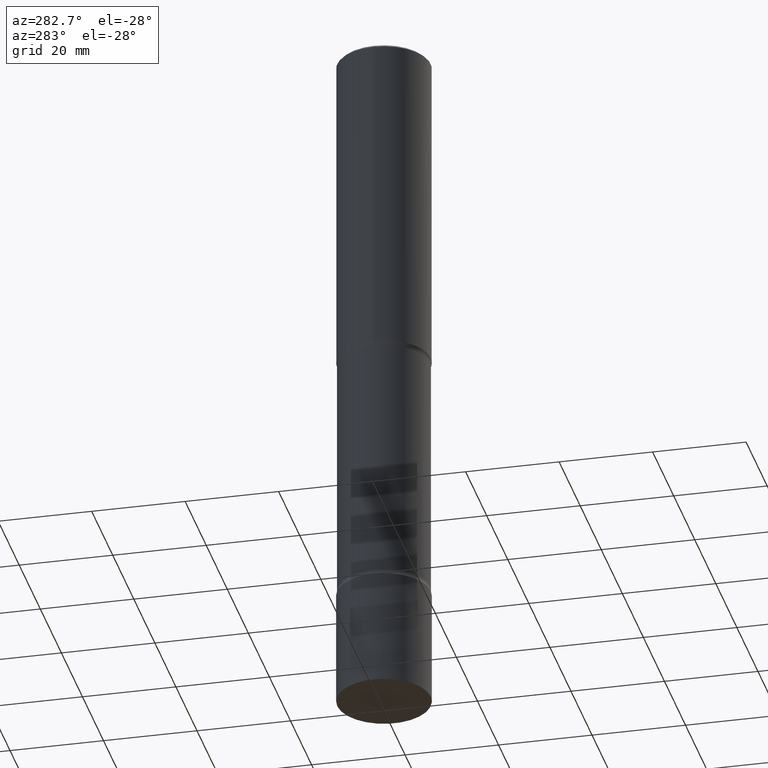
[diagram: clean part render]
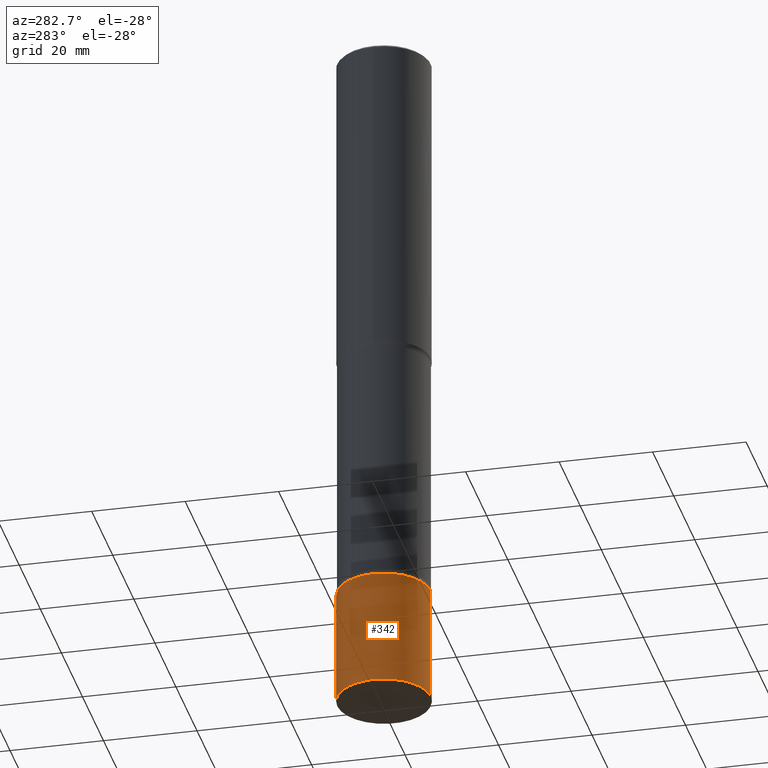
[diagram: same view with one face highlighted and labeled with its STEP entity id]
A machine part, auxiliary view. The second image highlights one B-rep face of the part: STEP entity #342.
In plain terms, the highlighted cylindrical surface (partial cylindrical patch) has radius 10 mm, axis along (-0, 0, 1).
Its self-contained STEP definition (entity closure, byte-faithful):
#17 = ORIENTED_EDGE ( 'NONE', *, *, #430, .T. ) ;
#21 = VECTOR ( 'NONE', #457, 39.37007874015748143 ) ;
#26 = LINE ( 'NONE', #172, #21 ) ;
#27 = ORIENTED_EDGE ( 'NONE', *, *, #60, .F. ) ;
#45 = CARTESIAN_POINT ( 'NONE',  ( 1.443466886683462122E-28, -2.062903499234540787E-14, -5.905499999999999972 ) ) ;
#47 = CARTESIAN_POINT ( 'NONE',  ( 2.797406750687658754E-15, 0.3936999999999828970, -4.921200000000002461 ) ) ;
#60 = EDGE_CURVE ( 'NONE', #161, #182, #475, .T. ) ;
#101 = ORIENTED_EDGE ( 'NONE', *, *, #155, .T. ) ;
#113 = CARTESIAN_POINT ( 'NONE',  ( 2.797406750687513998E-15, 0.3937000000000000499, -1.375268999489693910E-15 ) ) ;
#115 = EDGE_CURVE ( 'NONE', #182, #450, #297, .T. ) ;
#132 = CIRCLE ( 'NONE', #346, 0.3937000000000000499 ) ;
#154 = CARTESIAN_POINT ( 'NONE',  ( 2.797406750687646132E-15, 0.3936999999999793998, -5.905500000000000860 ) ) ;
#155 = EDGE_CURVE ( 'NONE', #161, #455, #132, .T. ) ;
#161 = VERTEX_POINT ( 'NONE', #154 ) ;
#172 = CARTESIAN_POINT ( 'NONE',  ( -2.749192406205082822E-15, -0.3937000000000000499, 1.375268999489693910E-15 ) ) ;
#182 = VERTEX_POINT ( 'NONE', #47 ) ;
#184 = AXIS2_PLACEMENT_3D ( 'NONE', #401, #283, #429 ) ;
#220 = ORIENTED_EDGE ( 'NONE', *, *, #115, .F. ) ;
#223 = DIRECTION ( 'NONE',  ( -6.982962677686265133E-15, -1.000000000000000000, 3.493190245084312098E-15 ) ) ;
#227 = EDGE_LOOP ( 'NONE', ( #27, #101, #17, #220 ) ) ;
#258 = DIRECTION ( 'NONE',  ( -2.444275483334962976E-29, 3.493190245084312886E-15, 1.000000000000000000 ) ) ;
#260 = FACE_OUTER_BOUND ( 'NONE', #227, .T. ) ;
#274 = DIRECTION ( 'NONE',  ( -2.444275483334962976E-29, 3.493190245084312886E-15, 1.000000000000000000 ) ) ;
#281 = DIRECTION ( 'NONE',  ( -2.444275483334962976E-29, 3.493190245084312886E-15, 1.000000000000000000 ) ) ;
#283 = DIRECTION ( 'NONE',  ( -2.444275483334962976E-29, 3.493190245084312886E-15, 1.000000000000000000 ) ) ;
#297 = CIRCLE ( 'NONE', #184, 0.3937000000000000499 ) ;
#342 = ADVANCED_FACE ( 'NONE', ( #260 ), #493, .T. ) ;
#344 = CARTESIAN_POINT ( 'NONE',  ( 0.000000000000000000, 0.000000000000000000, 0.000000000000000000 ) ) ;
#346 = AXIS2_PLACEMENT_3D ( 'NONE', #45, #274, #508 ) ;
#368 = VECTOR ( 'NONE', #281, 39.37007874015748143 ) ;
#401 = CARTESIAN_POINT ( 'NONE',  ( 1.202876850858801992E-28, -1.719068783410892213E-14, -4.921200000000000685 ) ) ;
#424 = CARTESIAN_POINT ( 'NONE',  ( -2.749192406204962521E-15, -0.3937000000000172584, -4.921199999999998909 ) ) ;
#429 = DIRECTION ( 'NONE',  ( -6.982962677686265133E-15, -1.000000000000000000, 4.163344669033674845E-15 ) ) ;
#430 = EDGE_CURVE ( 'NONE', #455, #450, #26, .T. ) ;
#450 = VERTEX_POINT ( 'NONE', #424 ) ;
#455 = VERTEX_POINT ( 'NONE', #500 ) ;
#457 = DIRECTION ( 'NONE',  ( -2.444275483334962976E-29, 3.493190245084312886E-15, 1.000000000000000000 ) ) ;
#472 = AXIS2_PLACEMENT_3D ( 'NONE', #344, #258, #223 ) ;
#475 = LINE ( 'NONE', #113, #368 ) ;
#493 = CYLINDRICAL_SURFACE ( 'NONE', #472, 0.3937000000000000499 ) ;
#500 = CARTESIAN_POINT ( 'NONE',  ( -2.749192406204938855E-15, -0.3937000000000206446, -5.905499999999998195 ) ) ;
#508 = DIRECTION ( 'NONE',  ( -6.982962677686265133E-15, -1.000000000000000000, 2.775563112689116301E-15 ) ) ;